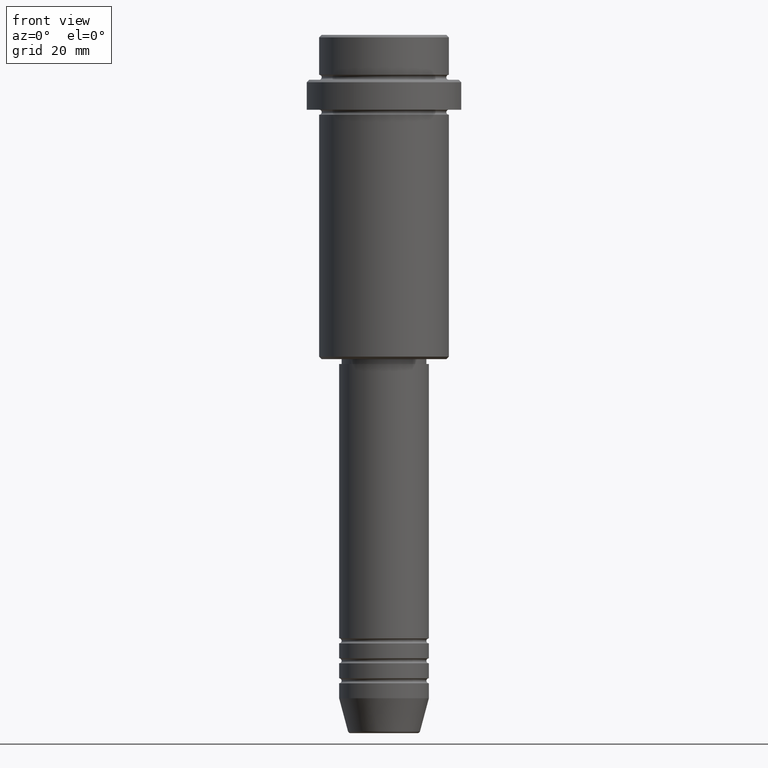
[diagram: clean part render]
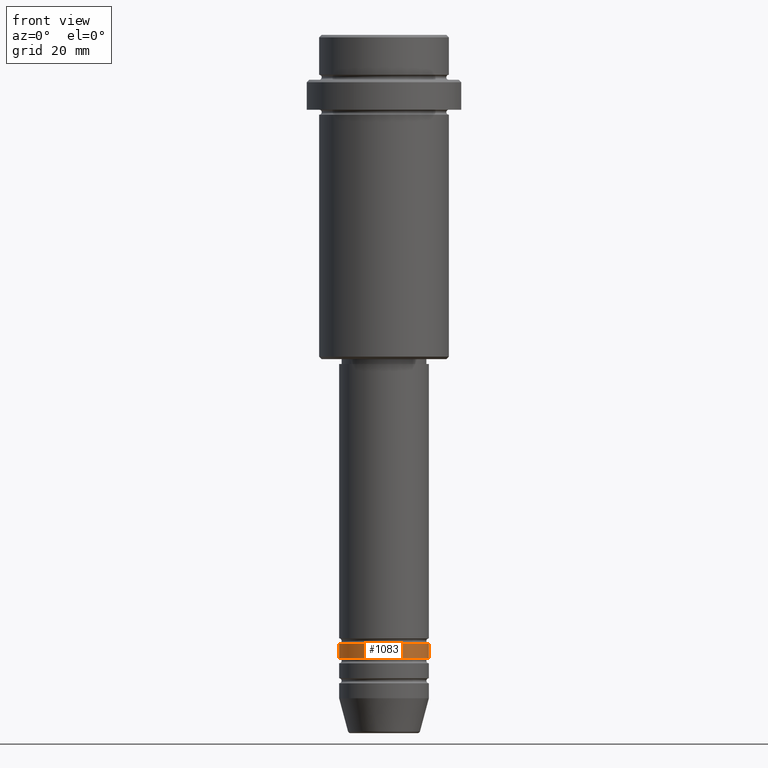
[diagram: same view with one face highlighted and labeled with its STEP entity id]
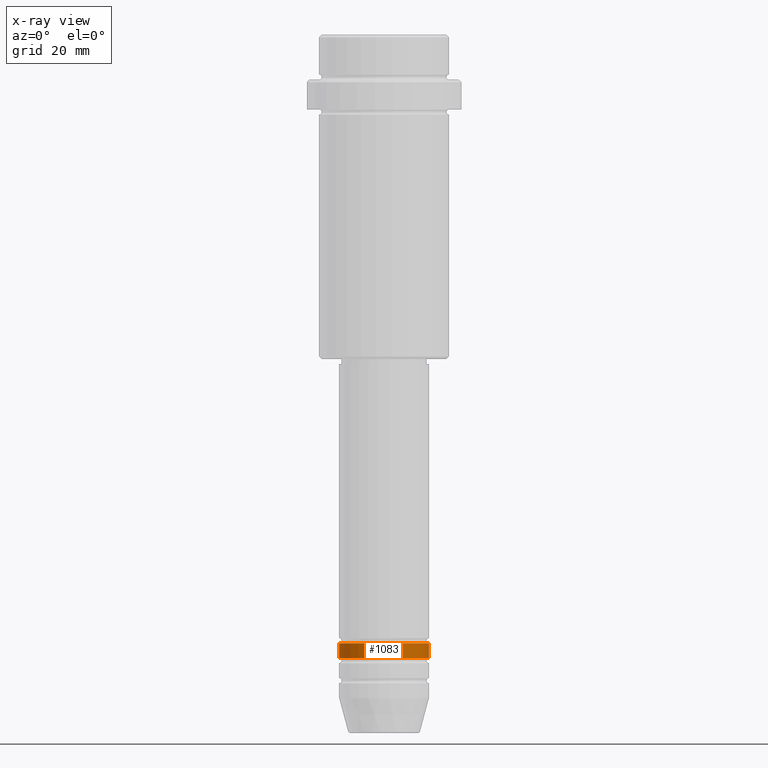
[diagram: x-ray of the same camera — body ghosted, the highlighted face saturated]
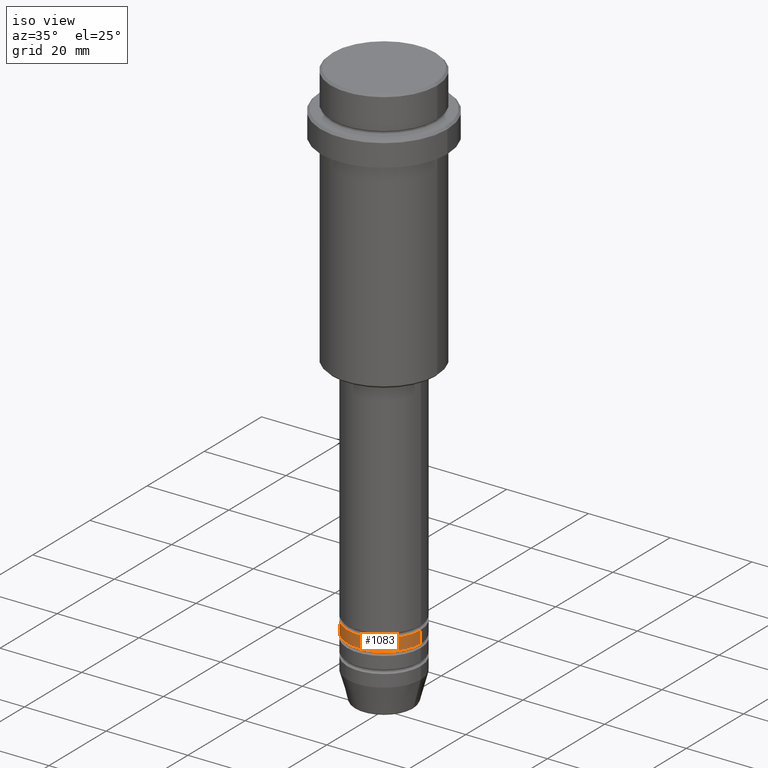
[diagram: same view with one face highlighted and labeled with its STEP entity id]
A machine part, front view. The second image highlights one B-rep face of the part: STEP entity #1083.
The next image is the same camera in x-ray: the body ghosted, the highlighted face saturated — about 0% of this face is hidden behind the body in this view.
A second angle (iso view) of the same face is appended — the face is thin or edge-on in the first view.
In plain terms, the highlighted cylindrical surface (partial cylindrical patch) has radius 9 mm, axis along (-0, -0, 1).
Its self-contained STEP definition (entity closure, byte-faithful):
#6 = ORIENTED_EDGE ( 'NONE', *, *, #1104, .F. ) ;
#10 = ORIENTED_EDGE ( 'NONE', *, *, #1034, .T. ) ;
#25 = CARTESIAN_POINT ( 'NONE',  ( -9.000000000000000000, 1.102182119232617714E-15, -124.9999999999999005 ) ) ;
#32 = VERTEX_POINT ( 'NONE', #25 ) ;
#39 = DIRECTION ( 'NONE',  ( -0.000000000000000000, -0.000000000000000000, 1.000000000000000000 ) ) ;
#126 = EDGE_CURVE ( 'NONE', #32, #1008, #137, .T. ) ;
#137 = CIRCLE ( 'NONE', #225, 9.000000000000000000 ) ;
#218 = CARTESIAN_POINT ( 'NONE',  ( 9.000000000000000000, 0.000000000000000000, -124.9999999999999005 ) ) ;
#225 = AXIS2_PLACEMENT_3D ( 'NONE', #816, #1043, #395 ) ;
#230 = CARTESIAN_POINT ( 'NONE',  ( -9.000000000000000000, 1.102182119232617714E-15, 0.000000000000000000 ) ) ;
#250 = AXIS2_PLACEMENT_3D ( 'NONE', #696, #570, #907 ) ;
#274 = VERTEX_POINT ( 'NONE', #680 ) ;
#395 = DIRECTION ( 'NONE',  ( 1.000000000000000000, 0.000000000000000000, 0.000000000000000000 ) ) ;
#491 = CARTESIAN_POINT ( 'NONE',  ( 9.000000000000000000, 0.000000000000000000, 0.000000000000000000 ) ) ;
#508 = VECTOR ( 'NONE', #1082, 1000.000000000000000 ) ;
#552 = VERTEX_POINT ( 'NONE', #1368 ) ;
#570 = DIRECTION ( 'NONE',  ( -0.000000000000000000, -0.000000000000000000, 1.000000000000000000 ) ) ;
#586 = ORIENTED_EDGE ( 'NONE', *, *, #126, .T. ) ;
#592 = CYLINDRICAL_SURFACE ( 'NONE', #250, 9.000000000000000000 ) ;
#680 = CARTESIAN_POINT ( 'NONE',  ( -9.000000000000000000, 1.102182119232617714E-15, -121.9999999999999005 ) ) ;
#692 = EDGE_LOOP ( 'NONE', ( #1340, #586, #10, #6 ) ) ;
#696 = CARTESIAN_POINT ( 'NONE',  ( 0.000000000000000000, 0.000000000000000000, 0.000000000000000000 ) ) ;
#791 = FACE_OUTER_BOUND ( 'NONE', #692, .T. ) ;
#800 = LINE ( 'NONE', #491, #1328 ) ;
#816 = CARTESIAN_POINT ( 'NONE',  ( 0.000000000000000000, 0.000000000000000000, -124.9999999999999005 ) ) ;
#847 = CIRCLE ( 'NONE', #1237, 9.000000000000000000 ) ;
#907 = DIRECTION ( 'NONE',  ( 1.000000000000000000, 0.000000000000000000, 0.000000000000000000 ) ) ;
#1008 = VERTEX_POINT ( 'NONE', #218 ) ;
#1034 = EDGE_CURVE ( 'NONE', #1008, #552, #800, .T. ) ;
#1043 = DIRECTION ( 'NONE',  ( -0.000000000000000000, -0.000000000000000000, 1.000000000000000000 ) ) ;
#1082 = DIRECTION ( 'NONE',  ( -0.000000000000000000, -0.000000000000000000, 1.000000000000000000 ) ) ;
#1083 = ADVANCED_FACE ( 'NONE', ( #791 ), #592, .T. ) ;
#1104 = EDGE_CURVE ( 'NONE', #274, #552, #847, .T. ) ;
#1139 = DIRECTION ( 'NONE',  ( -0.000000000000000000, -0.000000000000000000, 1.000000000000000000 ) ) ;
#1231 = DIRECTION ( 'NONE',  ( 1.000000000000000000, 0.000000000000000000, 0.000000000000000000 ) ) ;
#1237 = AXIS2_PLACEMENT_3D ( 'NONE', #1266, #1139, #1231 ) ;
#1266 = CARTESIAN_POINT ( 'NONE',  ( 0.000000000000000000, 0.000000000000000000, -121.9999999999999005 ) ) ;
#1328 = VECTOR ( 'NONE', #39, 1000.000000000000000 ) ;
#1332 = LINE ( 'NONE', #230, #508 ) ;
#1336 = EDGE_CURVE ( 'NONE', #32, #274, #1332, .T. ) ;
#1340 = ORIENTED_EDGE ( 'NONE', *, *, #1336, .F. ) ;
#1368 = CARTESIAN_POINT ( 'NONE',  ( 9.000000000000000000, 0.000000000000000000, -121.9999999999999005 ) ) ;